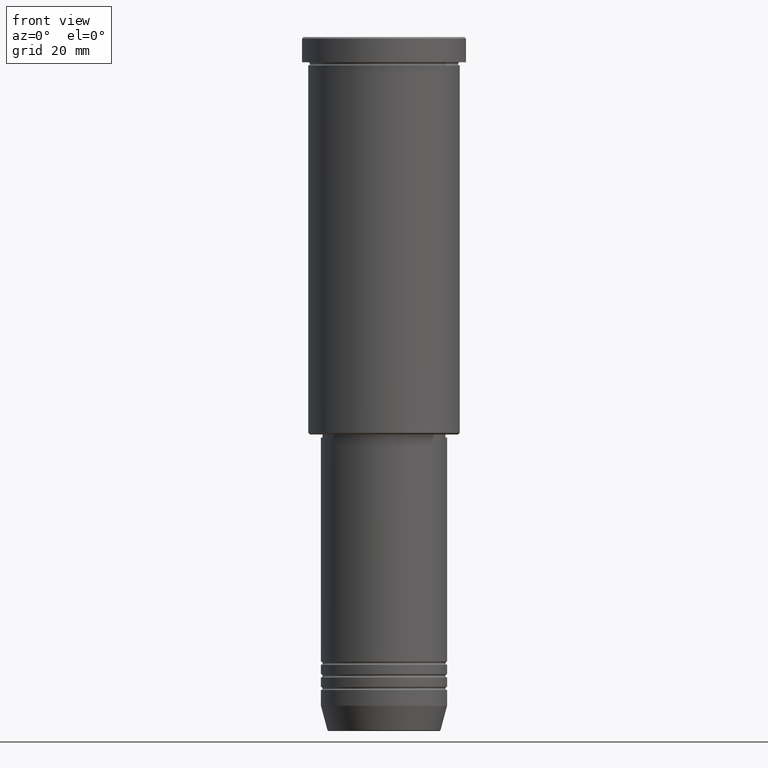
[diagram: clean part render]
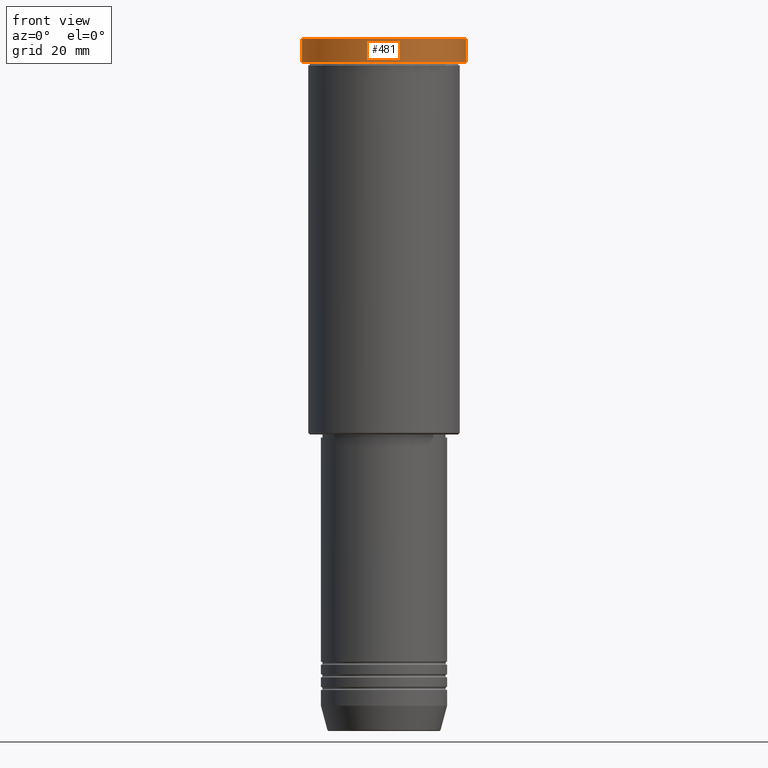
[diagram: same view with one face highlighted and labeled with its STEP entity id]
A machine part, front view. The second image highlights one B-rep face of the part: STEP entity #481.
In plain terms, the highlighted cylindrical surface (partial cylindrical patch) has radius 26 mm, axis along (-0, -0, 1).
Its self-contained STEP definition (entity closure, byte-faithful):
#73 = VERTEX_POINT ( 'NONE', #262 ) ;
#89 = AXIS2_PLACEMENT_3D ( 'NONE', #573, #1034, #302 ) ;
#106 = CARTESIAN_POINT ( 'NONE',  ( -26.00000000000000000, 3.184081677783118191E-15, -7.999999999999992895 ) ) ;
#119 = ORIENTED_EDGE ( 'NONE', *, *, #772, .F. ) ;
#138 = VERTEX_POINT ( 'NONE', #106 ) ;
#162 = CARTESIAN_POINT ( 'NONE',  ( 0.000000000000000000, 0.000000000000000000, 0.000000000000000000 ) ) ;
#166 = CARTESIAN_POINT ( 'NONE',  ( -26.00000000000000000, 3.184081677783118191E-15, 0.000000000000000000 ) ) ;
#221 = AXIS2_PLACEMENT_3D ( 'NONE', #162, #361, #815 ) ;
#231 = CARTESIAN_POINT ( 'NONE',  ( 26.00000000000000000, 0.000000000000000000, 0.000000000000000000 ) ) ;
#245 = EDGE_CURVE ( 'NONE', #138, #73, #355, .T. ) ;
#253 = LINE ( 'NONE', #231, #756 ) ;
#255 = ORIENTED_EDGE ( 'NONE', *, *, #1086, .T. ) ;
#262 = CARTESIAN_POINT ( 'NONE',  ( 26.00000000000000000, 0.000000000000000000, -7.999999999999992895 ) ) ;
#285 = CYLINDRICAL_SURFACE ( 'NONE', #221, 26.00000000000000000 ) ;
#302 = DIRECTION ( 'NONE',  ( 1.000000000000000000, 0.000000000000000000, 0.000000000000000000 ) ) ;
#310 = DIRECTION ( 'NONE',  ( -0.000000000000000000, -0.000000000000000000, 1.000000000000000000 ) ) ;
#315 = DIRECTION ( 'NONE',  ( 1.000000000000000000, 0.000000000000000000, 0.000000000000000000 ) ) ;
#343 = ORIENTED_EDGE ( 'NONE', *, *, #412, .T. ) ;
#346 = DIRECTION ( 'NONE',  ( -0.000000000000000000, -0.000000000000000000, 1.000000000000000000 ) ) ;
#355 = CIRCLE ( 'NONE', #1026, 26.00000000000000000 ) ;
#361 = DIRECTION ( 'NONE',  ( -0.000000000000000000, -0.000000000000000000, 1.000000000000000000 ) ) ;
#412 = EDGE_CURVE ( 'NONE', #73, #1088, #253, .T. ) ;
#481 = ADVANCED_FACE ( 'NONE', ( #863 ), #285, .T. ) ;
#525 = ORIENTED_EDGE ( 'NONE', *, *, #245, .T. ) ;
#538 = LINE ( 'NONE', #166, #683 ) ;
#573 = CARTESIAN_POINT ( 'NONE',  ( 0.000000000000000000, 0.000000000000000000, -0.5000000000000247580 ) ) ;
#683 = VECTOR ( 'NONE', #1084, 1000.000000000000000 ) ;
#756 = VECTOR ( 'NONE', #346, 1000.000000000000000 ) ;
#772 = EDGE_CURVE ( 'NONE', #138, #1038, #538, .T. ) ;
#795 = EDGE_LOOP ( 'NONE', ( #119, #525, #343, #255 ) ) ;
#815 = DIRECTION ( 'NONE',  ( 1.000000000000000000, 0.000000000000000000, 0.000000000000000000 ) ) ;
#818 = CARTESIAN_POINT ( 'NONE',  ( -26.00000000000000000, 3.184081677783118191E-15, -0.5000000000000247580 ) ) ;
#853 = CIRCLE ( 'NONE', #89, 26.00000000000000000 ) ;
#863 = FACE_OUTER_BOUND ( 'NONE', #795, .T. ) ;
#940 = CARTESIAN_POINT ( 'NONE',  ( 26.00000000000000000, 0.000000000000000000, -0.5000000000000247580 ) ) ;
#1026 = AXIS2_PLACEMENT_3D ( 'NONE', #1037, #310, #315 ) ;
#1034 = DIRECTION ( 'NONE',  ( 0.000000000000000000, 0.000000000000000000, -1.000000000000000000 ) ) ;
#1037 = CARTESIAN_POINT ( 'NONE',  ( 0.000000000000000000, 0.000000000000000000, -7.999999999999992895 ) ) ;
#1038 = VERTEX_POINT ( 'NONE', #818 ) ;
#1084 = DIRECTION ( 'NONE',  ( -0.000000000000000000, -0.000000000000000000, 1.000000000000000000 ) ) ;
#1086 = EDGE_CURVE ( 'NONE', #1088, #1038, #853, .T. ) ;
#1088 = VERTEX_POINT ( 'NONE', #940 ) ;